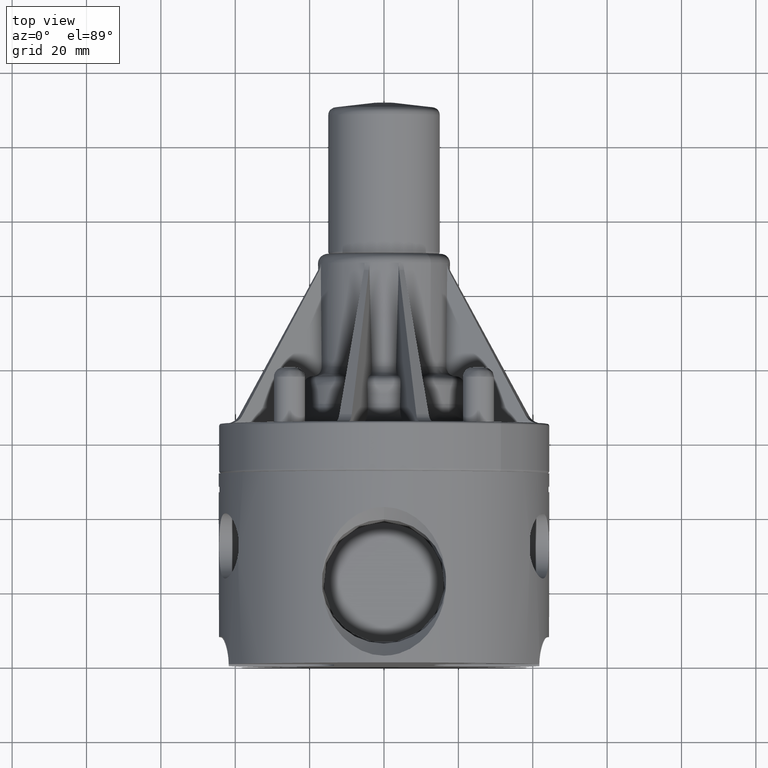
[diagram: clean part render]
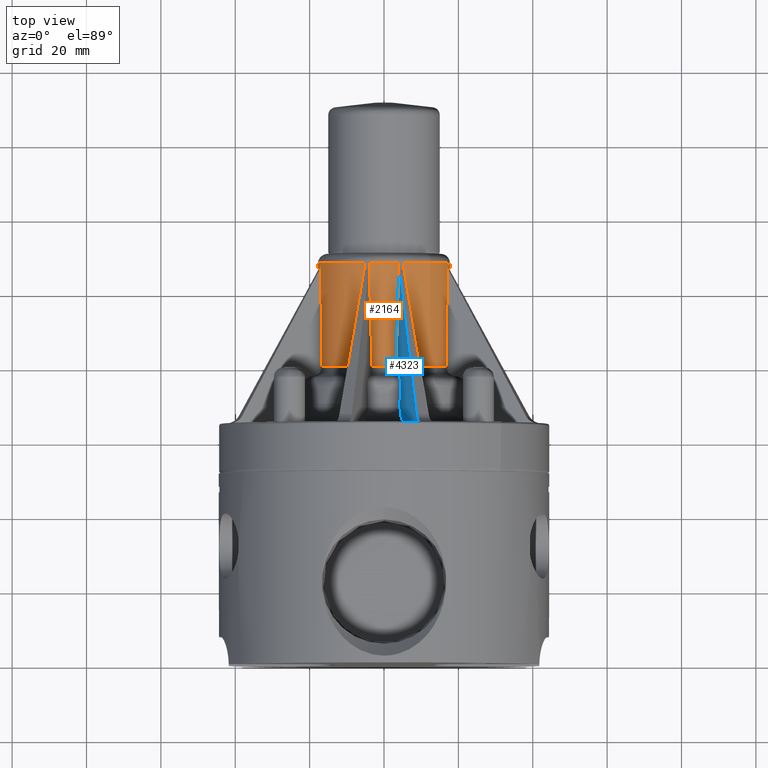
[diagram: same view with the hole feature highlighted: cylindrical wall and planar end face, labeled with their STEP entity ids]
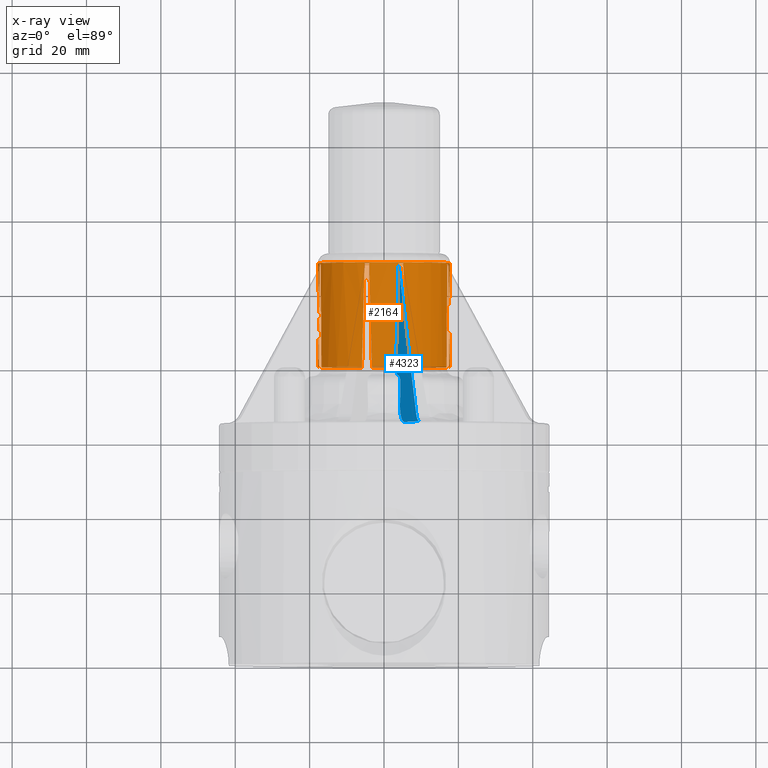
[diagram: x-ray of the same camera — body ghosted, the hole faces saturated]
A machine part, top view. The highlighted faces form one hole feature of diameter 35.56 mm: the cylindrical wall (entity #2164, orange) and its adjacent planar end face (entity #4323, blue) — they share a circular edge in the B-rep.
The next image is the same camera in x-ray (body ghosted, the hole faces saturated) — the bore reads through the body.
Wall:
#1249=CARTESIAN_POINT('',(-0.682343417455201,4.246826314709518,0.156228872669415));
#1250=VERTEX_POINT('',#1249);
#1261=CARTESIAN_POINT('',(-0.669041169956003,4.246826314709518,0.205873536191281));
#1262=VERTEX_POINT('',#1261);
#1272=CARTESIAN_POINT('',(-2.611814E-017,5.779233229634085,-4.755439E-033));
#1273=DIRECTION('',(0.878701736705662,-0.415268310828344,-0.235447420738108));
#1274=DIRECTION('',(-0.401118386268533,-0.909698977696344,0.107479347669929));
#1275=AXIS2_PLACEMENT_3D('',#1272,#1273,#1274);
#1276=ELLIPSE('',#1275,1.685657156462761,0.700000000000000);
#1277=EDGE_CURVE('',#1262,#1250,#1276,.T.);
#1342=CARTESIAN_POINT('',(-0.660060691147378,3.155000000000000,0.233066265259575));
#1343=VERTEX_POINT('',#1342);
#1357=CARTESIAN_POINT('',(-2.362782E-017,5.228192150791810,-4.056511E-033));
#1358=DIRECTION('',(0.258730354279914,0.026176948307873,0.965594827632935));
#1359=DIRECTION('',(0.006775092764742,-0.999657324975557,0.025284990424008));
#1360=AXIS2_PLACEMENT_3D('',#1357,#1358,#1359);
#1361=ELLIPSE('',#1360,26.741085009877565,0.700000000000000);
#1362=EDGE_CURVE('',#1262,#1343,#1361,.T.);
#1386=CARTESIAN_POINT('',(-0.688162459202931,3.155000000000000,0.128189039093733));
#1387=VERTEX_POINT('',#1386);
#1388=CARTESIAN_POINT('',(-2.362782E-017,5.228192150791822,-4.056511E-033));
#1389=DIRECTION('',(0.258730354279913,-0.026176948307873,0.965594827632935));
#1390=DIRECTION('',(0.006775092764742,0.999657324975557,0.025284990424009));
#1391=AXIS2_PLACEMENT_3D('',#1388,#1389,#1390);
#1392=ELLIPSE('',#1391,26.741085009877246,0.700000000000000);
#1393=EDGE_CURVE('',#1387,#1250,#1392,.F.);
#1618=CARTESIAN_POINT('',(-0.688162459202931,3.155000000000000,-0.128189039093734));
#1619=VERTEX_POINT('',#1618);
#1620=CARTESIAN_POINT('',(-1.425842E-017,3.155000000000000,-1.426923E-033));
#1621=DIRECTION('',(2.259655E-018,-1.0,2.259655E-018));
#1622=DIRECTION('',(0.707106781186548,3.195635E-018,0.707106781186547));
#1623=AXIS2_PLACEMENT_3D('',#1620,#1621,#1622);
#1624=CIRCLE('',#1623,0.700000000000000);
#1625=EDGE_CURVE('',#1387,#1619,#1624,.T.);
#1684=CARTESIAN_POINT('',(0.688162459202931,3.155000000000000,-0.128189039093734));
#1685=VERTEX_POINT('',#1684);
#1699=CARTESIAN_POINT('',(0.688162459202931,3.155000000000000,0.128189039093734));
#1700=VERTEX_POINT('',#1699);
#1701=CARTESIAN_POINT('',(-1.425842E-017,3.155000000000000,-1.426923E-033));
#1702=DIRECTION('',(2.259655E-018,-1.0,2.259655E-018));
#1703=DIRECTION('',(0.707106781186548,3.195635E-018,0.707106781186547));
#1704=AXIS2_PLACEMENT_3D('',#1701,#1702,#1703);
#1705=CIRCLE('',#1704,0.700000000000000);
#1706=EDGE_CURVE('',#1685,#1700,#1705,.T.);
#1895=CARTESIAN_POINT('',(0.494974746830583,4.255000000000000,0.494974746830583));
#1896=VERTEX_POINT('',#1895);
#1897=CARTESIAN_POINT('',(-1.922966E-017,4.255000000000000,-2.822137E-033));
#1898=DIRECTION('',(2.259655E-018,-1.000000000000000,2.259655E-018));
#1899=DIRECTION('',(0.707106781186548,3.195635E-018,0.707106781186547));
#1900=AXIS2_PLACEMENT_3D('',#1897,#1898,#1899);
#1901=CIRCLE('',#1900,0.699999999999999);
#1902=EDGE_CURVE('',#1896,#1896,#1901,.T.);
#1910=CARTESIAN_POINT('',(-1.674404E-017,3.705000000000000,-2.124530E-033));
#1911=DIRECTION('',(4.519310E-018,-1.0,1.268376E-033));
#1912=DIRECTION('',(0.707106781186548,3.195635E-018,0.707106781186547));
#1913=AXIS2_PLACEMENT_3D('',#1910,#1911,#1912);
#1914=CYLINDRICAL_SURFACE('',#1913,0.700000000000000);
#1915=ORIENTED_EDGE('',*,*,#1362,.T.);
#1916=CARTESIAN_POINT('',(-0.233066265259573,3.155000000000000,0.660060691147378));
#1917=VERTEX_POINT('',#1916);
#1918=CARTESIAN_POINT('',(-1.425842E-017,3.155000000000000,-1.426923E-033));
#1919=DIRECTION('',(2.259655E-018,-1.0,2.259655E-018));
#1920=DIRECTION('',(0.707106781186548,3.195635E-018,0.707106781186547));
#1921=AXIS2_PLACEMENT_3D('',#1918,#1919,#1920);
#1922=CIRCLE('',#1921,0.700000000000000);
#1923=EDGE_CURVE('',#1917,#1343,#1922,.T.);
#1924=ORIENTED_EDGE('',*,*,#1923,.F.);
#1925=CARTESIAN_POINT('',(-0.205873536191280,4.246826314709517,0.669041169956003));
#1926=VERTEX_POINT('',#1925);
#1927=CARTESIAN_POINT('',(-2.362782E-017,5.228192150791744,-4.056511E-033));
#1928=DIRECTION('',(0.965594827632935,-0.026176948307873,0.258730354279913));
#1929=DIRECTION('',(0.025284990424009,0.999657324975557,0.006775092764742));
#1930=AXIS2_PLACEMENT_3D('',#1927,#1928,#1929);
#1931=ELLIPSE('',#1930,26.741085009877157,0.700000000000000);
#1932=EDGE_CURVE('',#1917,#1926,#1931,.F.);
#1933=ORIENTED_EDGE('',*,*,#1932,.T.);
#1934=CARTESIAN_POINT('',(-0.156228872669416,4.246826314709518,0.682343417455201));
#1935=VERTEX_POINT('',#1934);
#1936=CARTESIAN_POINT('',(-2.611814E-017,5.779233229634085,-4.755439E-033));
#1937=DIRECTION('',(0.235447420738109,-0.415268310828344,-0.878701736705662));
#1938=DIRECTION('',(-0.107479347669929,-0.909698977696344,0.401118386268533));
#1939=AXIS2_PLACEMENT_3D('',#1936,#1937,#1938);
#1940=ELLIPSE('',#1939,1.685657156462761,0.700000000000000);
#1941=EDGE_CURVE('',#1935,#1926,#1940,.T.);
#1942=ORIENTED_EDGE('',*,*,#1941,.F.);
#1943=CARTESIAN_POINT('',(-0.128189039093734,3.155000000000000,0.688162459202931));
#1944=VERTEX_POINT('',#1943);
#1945=CARTESIAN_POINT('',(-2.362782E-017,5.228192150791793,-4.056511E-033));
#1946=DIRECTION('',(0.965594827632935,0.026176948307873,0.258730354279914));
#1947=DIRECTION('',(0.025284990424009,-0.999657324975557,0.006775092764742));
#1948=AXIS2_PLACEMENT_3D('',#1945,#1946,#1947);
#1949=ELLIPSE('',#1948,26.741085009877150,0.700000000000000);
#1950=EDGE_CURVE('',#1935,#1944,#1949,.T.);
#1951=ORIENTED_EDGE('',*,*,#1950,.T.);
#1952=CARTESIAN_POINT('',(0.128189039093735,3.155000000000000,0.688162459202931));
#1953=VERTEX_POINT('',#1952);
#1954=CARTESIAN_POINT('',(-1.425842E-017,3.155000000000000,-1.426923E-033));
#1955=DIRECTION('',(2.259655E-018,-1.0,2.259655E-018));
#1956=DIRECTION('',(0.707106781186548,3.195635E-018,0.707106781186547));
#1957=AXIS2_PLACEMENT_3D('',#1954,#1955,#1956);
#1958=CIRCLE('',#1957,0.700000000000000);
#1959=EDGE_CURVE('',#1953,#1944,#1958,.T.);
#1960=ORIENTED_EDGE('',*,*,#1959,.F.);
#1961=CARTESIAN_POINT('',(0.156228872669417,4.246826314709518,0.682343417455201));
#1962=VERTEX_POINT('',#1961);
#1963=CARTESIAN_POINT('',(-2.362782E-017,5.228192150791786,-4.056511E-033));
#1964=DIRECTION('',(-0.965594827632935,0.026176948307873,0.258730354279914));
#1965=DIRECTION('',(0.025284990424009,0.999657324975557,-0.006775092764742));
#1966=AXIS2_PLACEMENT_3D('',#1963,#1964,#1965);
#1967=ELLIPSE('',#1966,26.741085009877256,0.700000000000000);
#1968=EDGE_CURVE('',#1953,#1962,#1967,.T.);
#1969=ORIENTED_EDGE('',*,*,#1968,.T.);
#1970=CARTESIAN_POINT('',(0.205873536191282,4.246826314709518,0.669041169956003));
#1971=VERTEX_POINT('',#1970);
#1972=CARTESIAN_POINT('',(-2.611814E-017,5.779233229634085,-4.755439E-033));
#1973=DIRECTION('',(-0.235447420738109,-0.415268310828344,-0.878701736705662));
#1974=DIRECTION('',(0.107479347669929,-0.909698977696344,0.401118386268533));
#1975=AXIS2_PLACEMENT_3D('',#1972,#1973,#1974);
#1976=ELLIPSE('',#1975,1.685657156462761,0.700000000000000);
#1977=EDGE_CURVE('',#1971,#1962,#1976,.T.);
#1978=ORIENTED_EDGE('',*,*,#1977,.F.);
#1979=CARTESIAN_POINT('',(0.233066265259575,3.155000000000000,0.660060691147378));
#1980=VERTEX_POINT('',#1979);
#1981=CARTESIAN_POINT('',(-2.362782E-017,5.228192150791786,-4.056511E-033));
#1982=DIRECTION('',(-0.965594827632935,-0.026176948307873,0.258730354279914));
#1983=DIRECTION('',(0.025284990424009,-0.999657324975557,-0.006775092764742));
#1984=AXIS2_PLACEMENT_3D('',#1981,#1982,#1983);
#1985=ELLIPSE('',#1984,26.741085009877313,0.700000000000000);
#1986=EDGE_CURVE('',#1971,#1980,#1985,.F.);
#1987=ORIENTED_EDGE('',*,*,#1986,.T.);
#1988=CARTESIAN_POINT('',(0.660060691147378,3.155000000000000,0.233066265259575));
#1989=VERTEX_POINT('',#1988);
#1990=CARTESIAN_POINT('',(-1.425842E-017,3.155000000000000,-1.426923E-033));
#1991=DIRECTION('',(2.259655E-018,-1.0,2.259655E-018));
#1992=DIRECTION('',(0.707106781186548,3.195635E-018,0.707106781186547));
#1993=AXIS2_PLACEMENT_3D('',#1990,#1991,#1992);
#1994=CIRCLE('',#1993,0.700000000000000);
#1995=EDGE_CURVE('',#1989,#1980,#1994,.T.);
#1996=ORIENTED_EDGE('',*,*,#1995,.F.);
#1997=CARTESIAN_POINT('',(0.669041169956003,4.246826314709517,0.205873536191281));
#1998=VERTEX_POINT('',#1997);
#1999=CARTESIAN_POINT('',(-2.362782E-017,5.228192150791786,-4.056511E-033));
#2000=DIRECTION('',(-0.258730354279914,0.026176948307873,0.965594827632935));
#2001=DIRECTION('',(-0.006775092764742,-0.999657324975557,0.025284990424009));
#2002=AXIS2_PLACEMENT_3D('',#1999,#2000,#2001);
#2003=ELLIPSE('',#2002,26.741085009877324,0.700000000000000);
#2004=EDGE_CURVE('',#1989,#1998,#2003,.T.);
#2005=ORIENTED_EDGE('',*,*,#2004,.T.);
#2006=CARTESIAN_POINT('',(0.682343417455201,4.246826314709518,0.156228872669417));
#2007=VERTEX_POINT('',#2006);
#2008=CARTESIAN_POINT('',(-2.611814E-017,5.779233229634085,-4.755439E-033));
#2009=DIRECTION('',(-0.878701736705662,-0.415268310828344,-0.235447420738109));
#2010=DIRECTION('',(0.401118386268533,-0.909698977696345,0.107479347669929));
#2011=AXIS2_PLACEMENT_3D('',#2008,#2009,#2010);
#2012=ELLIPSE('',#2011,1.685657156462762,0.700000000000000);
#2013=EDGE_CURVE('',#2007,#1998,#2012,.T.);
#2014=ORIENTED_EDGE('',*,*,#2013,.F.);
#2015=CARTESIAN_POINT('',(-2.362782E-017,5.228192150791787,-4.056511E-033));
#2016=DIRECTION('',(-0.258730354279914,-0.026176948307873,0.965594827632935));
#2017=DIRECTION('',(-0.006775092764742,0.999657324975557,0.025284990424009));
#2018=AXIS2_PLACEMENT_3D('',#2015,#2016,#2017);
#2019=ELLIPSE('',#2018,26.741085009877157,0.700000000000000);
#2020=EDGE_CURVE('',#2007,#1700,#2019,.F.);
#2021=ORIENTED_EDGE('',*,*,#2020,.T.);
#2022=ORIENTED_EDGE('',*,*,#1706,.F.);
#2023=CARTESIAN_POINT('',(0.682343417455201,4.246826314709517,-0.156228872669416));
#2024=VERTEX_POINT('',#2023);
#2025=CARTESIAN_POINT('',(-2.362782E-017,5.228192150791796,-4.056511E-033));
#2026=DIRECTION('',(0.258730354279914,0.026176948307873,0.965594827632935));
#2027=DIRECTION('',(0.006775092764742,-0.999657324975557,0.025284990424009));
#2028=AXIS2_PLACEMENT_3D('',#2025,#2026,#2027);
#2029=ELLIPSE('',#2028,26.741085009877132,0.700000000000000);
#2030=EDGE_CURVE('',#1685,#2024,#2029,.T.);
#2031=ORIENTED_EDGE('',*,*,#2030,.T.);
#2032=CARTESIAN_POINT('',(0.669041169956003,4.246826314709517,-0.205873536191282));
#2033=VERTEX_POINT('',#2032);
#2034=CARTESIAN_POINT('',(-2.611814E-017,5.779233229634085,-4.755439E-033));
#2035=DIRECTION('',(-0.878701736705662,-0.415268310828344,0.235447420738109));
#2036=DIRECTION('',(0.401118386268533,-0.909698977696345,-0.107479347669929));
#2037=AXIS2_PLACEMENT_3D('',#2034,#2035,#2036);
#2038=ELLIPSE('',#2037,1.685657156462762,0.700000000000000);
#2039=EDGE_CURVE('',#2033,#2024,#2038,.T.);
#2040=ORIENTED_EDGE('',*,*,#2039,.F.);
#2041=CARTESIAN_POINT('',(0.660060691147378,3.155000000000000,-0.233066265259575));
#2042=VERTEX_POINT('',#2041);
#2043=CARTESIAN_POINT('',(-2.362782E-017,5.228192150791800,-4.056511E-033));
#2044=DIRECTION('',(0.258730354279914,-0.026176948307873,0.965594827632935));
#2045=DIRECTION('',(0.006775092764742,0.999657324975557,0.025284990424008));
#2046=AXIS2_PLACEMENT_3D('',#2043,#2044,#2045);
#2047=ELLIPSE('',#2046,26.741085009877501,0.700000000000000);
#2048=EDGE_CURVE('',#2033,#2042,#2047,.F.);
#2049=ORIENTED_EDGE('',*,*,#2048,.T.);
#2050=CARTESIAN_POINT('',(0.233066265259573,3.155000000000000,-0.660060691147378));
#2051=VERTEX_POINT('',#2050);
#2052=CARTESIAN_POINT('',(-1.425842E-017,3.155000000000000,-1.426923E-033));
#2053=DIRECTION('',(2.259655E-018,-1.0,2.259655E-018));
#2054=DIRECTION('',(0.707106781186548,3.195635E-018,0.707106781186547));
#2055=AXIS2_PLACEMENT_3D('',#2052,#2053,#2054);
#2056=CIRCLE('',#2055,0.700000000000000);
#2057=EDGE_CURVE('',#2051,#2042,#2056,.T.);
#2058=ORIENTED_EDGE('',*,*,#2057,.F.);
#2059=CARTESIAN_POINT('',(0.205873536191280,4.246826314709517,-0.669041169956003));
#2060=VERTEX_POINT('',#2059);
#2061=CARTESIAN_POINT('',(-2.362782E-017,5.228192150791765,-4.056511E-033));
#2062=DIRECTION('',(0.965594827632935,0.026176948307873,0.258730354279913));
#2063=DIRECTION('',(0.025284990424009,-0.999657324975557,0.006775092764742));
#2064=AXIS2_PLACEMENT_3D('',#2061,#2062,#2063);
#2065=ELLIPSE('',#2064,26.741085009877356,0.700000000000000);
#2066=EDGE_CURVE('',#2051,#2060,#2065,.T.);
#2067=ORIENTED_EDGE('',*,*,#2066,.T.);
#2068=CARTESIAN_POINT('',(0.156228872669417,4.246826314709518,-0.682343417455201));
#2069=VERTEX_POINT('',#2068);
#2070=CARTESIAN_POINT('',(-2.611814E-017,5.779233229634085,-4.755439E-033));
#2071=DIRECTION('',(-0.235447420738109,-0.415268310828344,0.878701736705662));
#2072=DIRECTION('',(0.107479347669929,-0.909698977696344,-0.401118386268533));
#2073=AXIS2_PLACEMENT_3D('',#2070,#2071,#2072);
#2074=ELLIPSE('',#2073,1.685657156462761,0.700000000000000);
#2075=EDGE_CURVE('',#2069,#2060,#2074,.T.);
#2076=ORIENTED_EDGE('',*,*,#2075,.F.);
#2077=CARTESIAN_POINT('',(0.128189039093734,3.155000000000000,-0.688162459202931));
#2078=VERTEX_POINT('',#2077);
#2079=CARTESIAN_POINT('',(-2.362782E-017,5.228192150791780,-4.056511E-033));
#2080=DIRECTION('',(0.965594827632935,-0.026176948307873,0.258730354279914));
#2081=DIRECTION('',(0.025284990424009,0.999657324975557,0.006775092764742));
#2082=AXIS2_PLACEMENT_3D('',#2079,#2080,#2081);
#2083=ELLIPSE('',#2082,26.741085009877033,0.700000000000000);
#2084=EDGE_CURVE('',#2069,#2078,#2083,.F.);
#2085=ORIENTED_EDGE('',*,*,#2084,.T.);
#2086=CARTESIAN_POINT('',(-0.128189039093735,3.155000000000000,-0.688162459202931));
#2087=VERTEX_POINT('',#2086);
#2088=CARTESIAN_POINT('',(-1.425842E-017,3.155000000000000,-1.426923E-033));
#2089=DIRECTION('',(2.259655E-018,-1.0,2.259655E-018));
#2090=DIRECTION('',(0.707106781186548,3.195635E-018,0.707106781186547));
#2091=AXIS2_PLACEMENT_3D('',#2088,#2089,#2090);
#2092=CIRCLE('',#2091,0.700000000000000);
#2093=EDGE_CURVE('',#2087,#2078,#2092,.T.);
#2094=ORIENTED_EDGE('',*,*,#2093,.F.);
#2095=CARTESIAN_POINT('',(-0.156228872669417,4.246826314709518,-0.682343417455201));
#2096=VERTEX_POINT('',#2095);
#2097=CARTESIAN_POINT('',(-2.362782E-017,5.228192150791787,-4.056511E-033));
#2098=DIRECTION('',(-0.965594827632935,-0.026176948307873,0.258730354279915));
#2099=DIRECTION('',(0.025284990424009,-0.999657324975557,-0.006775092764742));
#2100=AXIS2_PLACEMENT_3D('',#2097,#2098,#2099);
#2101=ELLIPSE('',#2100,26.741085009877217,0.700000000000000);
#2102=EDGE_CURVE('',#2087,#2096,#2101,.F.);
#2103=ORIENTED_EDGE('',*,*,#2102,.T.);
#2104=CARTESIAN_POINT('',(-0.205873536191281,4.246826314709517,-0.669041169956003));
#2105=VERTEX_POINT('',#2104);
#2106=CARTESIAN_POINT('',(-2.611814E-017,5.779233229634085,-4.755439E-033));
#2107=DIRECTION('',(0.235447420738109,-0.415268310828344,0.878701736705662));
#2108=DIRECTION('',(-0.107479347669929,-0.909698977696344,-0.401118386268533));
#2109=AXIS2_PLACEMENT_3D('',#2106,#2107,#2108);
#2110=ELLIPSE('',#2109,1.685657156462761,0.700000000000000);
#2111=EDGE_CURVE('',#2105,#2096,#2110,.T.);
#2112=ORIENTED_EDGE('',*,*,#2111,.F.);
#2113=CARTESIAN_POINT('',(-0.233066265259575,3.155000000000000,-0.660060691147378));
#2114=VERTEX_POINT('',#2113);
#2115=CARTESIAN_POINT('',(-2.362782E-017,5.228192150791769,-4.056511E-033));
#2116=DIRECTION('',(-0.965594827632935,0.026176948307873,0.258730354279914));
#2117=DIRECTION('',(0.025284990424009,0.999657324975557,-0.006775092764742));
#2118=AXIS2_PLACEMENT_3D('',#2115,#2116,#2117);
#2119=ELLIPSE('',#2118,26.741085009877199,0.700000000000000);
#2120=EDGE_CURVE('',#2105,#2114,#2119,.T.);
#2121=ORIENTED_EDGE('',*,*,#2120,.T.);
#2122=CARTESIAN_POINT('',(-0.660060691147378,3.155000000000000,-0.233066265259575));
#2123=VERTEX_POINT('',#2122);
#2124=CARTESIAN_POINT('',(-1.425842E-017,3.155000000000000,-1.426923E-033));
#2125=DIRECTION('',(2.259655E-018,-1.0,2.259655E-018));
#2126=DIRECTION('',(0.707106781186548,3.195635E-018,0.707106781186547));
#2127=AXIS2_PLACEMENT_3D('',#2124,#2125,#2126);
#2128=CIRCLE('',#2127,0.700000000000000);
#2129=EDGE_CURVE('',#2123,#2114,#2128,.T.);
#2130=ORIENTED_EDGE('',*,*,#2129,.F.);
#2131=CARTESIAN_POINT('',(-0.669041169956003,4.246826314709518,-0.205873536191282));
#2132=VERTEX_POINT('',#2131);
#2133=CARTESIAN_POINT('',(-2.362782E-017,5.228192150791800,-4.056511E-033));
#2134=DIRECTION('',(-0.258730354279914,-0.026176948307873,0.965594827632935));
#2135=DIRECTION('',(-0.006775092764742,0.999657324975557,0.025284990424009));
#2136=AXIS2_PLACEMENT_3D('',#2133,#2134,#2135);
#2137=ELLIPSE('',#2136,26.741085009877391,0.700000000000000);
#2138=EDGE_CURVE('',#2123,#2132,#2137,.F.);
#2139=ORIENTED_EDGE('',*,*,#2138,.T.);
#2140=CARTESIAN_POINT('',(-0.682343417455201,4.246826314709518,-0.156228872669416));
#2141=VERTEX_POINT('',#2140);
#2142=CARTESIAN_POINT('',(-2.611814E-017,5.779233229634085,-4.755439E-033));
#2143=DIRECTION('',(0.878701736705662,-0.415268310828344,0.235447420738109));
#2144=DIRECTION('',(-0.401118386268533,-0.909698977696344,-0.107479347669929));
#2145=AXIS2_PLACEMENT_3D('',#2142,#2143,#2144);
#2146=ELLIPSE('',#2145,1.685657156462761,0.700000000000000);
#2147=EDGE_CURVE('',#2141,#2132,#2146,.T.);
#2148=ORIENTED_EDGE('',*,*,#2147,.F.);
#2149=CARTESIAN_POINT('',(-2.362782E-017,5.228192150791821,-4.056511E-033));
#2150=DIRECTION('',(-0.258730354279914,0.026176948307873,0.965594827632935));
#2151=DIRECTION('',(-0.006775092764742,-0.999657324975557,0.025284990424009));
#2152=AXIS2_PLACEMENT_3D('',#2149,#2150,#2151);
#2153=ELLIPSE('',#2152,26.741085009877402,0.700000000000000);
#2154=EDGE_CURVE('',#2141,#1619,#2153,.T.);
#2155=ORIENTED_EDGE('',*,*,#2154,.T.);
#2156=ORIENTED_EDGE('',*,*,#1625,.F.);
#2157=ORIENTED_EDGE('',*,*,#1393,.T.);
#2158=ORIENTED_EDGE('',*,*,#1277,.F.);
#2159=EDGE_LOOP('',(#1915,#1924,#1933,#1942,#1951,#1960,#1969,#1978,#1987,#1996,#2005,#2014,#2021,#2022,#2031,#2040,#2049,#2058,#2067,#2076,#2085,#2094,#2103,#2112,#2121,#2130,#2139,#2148,#2155,#2156,#2157,#2158));
#2160=FACE_OUTER_BOUND('',#2159,.T.);
#2161=ORIENTED_EDGE('',*,*,#1902,.T.);
#2162=EDGE_LOOP('',(#2161));
#2163=FACE_BOUND('',#2162,.T.);
#2164=ADVANCED_FACE('',(#2160,#2163),#1914,.T.);
End face:
#1952=CARTESIAN_POINT('',(0.128189039093735,3.155000000000000,0.688162459202931));
#1953=VERTEX_POINT('',#1952);
#1961=CARTESIAN_POINT('',(0.156228872669417,4.246826314709518,0.682343417455201));
#1962=VERTEX_POINT('',#1961);
#1963=CARTESIAN_POINT('',(-2.362782E-017,5.228192150791786,-4.056511E-033));
#1964=DIRECTION('',(-0.965594827632935,0.026176948307873,0.258730354279914));
#1965=DIRECTION('',(0.025284990424009,0.999657324975557,-0.006775092764742));
#1966=AXIS2_PLACEMENT_3D('',#1963,#1964,#1965);
#1967=ELLIPSE('',#1966,26.741085009877256,0.700000000000000);
#1968=EDGE_CURVE('',#1953,#1962,#1967,.T.);
#2358=CARTESIAN_POINT('',(0.373432335502502,2.555000000000001,1.664127680645381));
#2359=VERTEX_POINT('',#2358);
#2366=CARTESIAN_POINT('',(0.216509096380594,2.555000000000000,1.078482179354141));
#2367=VERTEX_POINT('',#2366);
#2368=CARTESIAN_POINT('',(0.373432335502502,2.555000000000001,1.664127680645381));
#2369=DIRECTION('',(-0.258819045102521,0.0,-0.965925826289068));
#2370=VECTOR('',#2369,0.606304837651143);
#2371=LINE('',#2368,#2370);
#2372=EDGE_CURVE('',#2359,#2367,#2371,.T.);
#3132=CARTESIAN_POINT('',(0.169777201276021,2.754999999999999,0.883841446146807));
#3133=VERTEX_POINT('',#3132);
#3165=CARTESIAN_POINT('',(0.216509096380594,2.555000000000000,1.078482179354141));
#3166=CARTESIAN_POINT('',(0.213308023399297,2.555000000000000,1.066535612349206));
#3167=CARTESIAN_POINT('',(0.209842755589141,2.556217885510780,1.053479837701843));
#3168=CARTESIAN_POINT('',(0.203128527081715,2.561471903867086,1.027890422406276));
#3169=CARTESIAN_POINT('',(0.199879575872808,2.565508160370529,1.015356804658082));
#3170=CARTESIAN_POINT('',(0.194207840437122,2.574957053876605,0.993233611524414));
#3171=CARTESIAN_POINT('',(0.191262000533208,2.581236633620061,0.981604253164174));
#3172=CARTESIAN_POINT('',(0.185843632805237,2.596183871431072,0.959870348228601));
#3173=CARTESIAN_POINT('',(0.183371138585311,2.604851699085820,0.949765909907674));
#3174=CARTESIAN_POINT('',(0.179292656766511,2.622303274375320,0.932779151839400));
#3175=CARTESIAN_POINT('',(0.177310895541279,2.632693896922299,0.924331850848877));
#3176=CARTESIAN_POINT('',(0.174007429995611,2.655073180475888,0.909738933819802));
#3177=CARTESIAN_POINT('',(0.172685756156060,2.667061915289674,0.903593424070046));
#3178=CARTESIAN_POINT('',(0.170822404703517,2.689869939347136,0.894331708342628));
#3179=CARTESIAN_POINT('',(0.170109033763848,2.702789140109283,0.890362276371969));
#3180=CARTESIAN_POINT('',(0.169427388711545,2.729185125918652,0.885147738261019));
#3181=CARTESIAN_POINT('',(0.169459092598124,2.742661894506163,0.883902551677975));
#3182=CARTESIAN_POINT('',(0.169777201276021,2.755000000000000,0.883841446146808));
#3183=B_SPLINE_CURVE_WITH_KNOTS('',3,(#3165,#3166,#3167,#3168,#3169,#3170,#3171,#3172,#3173,#3174,#3175,#3176,#3177,#3178,#3179,#3180,#3181,#3182),.UNSPECIFIED.,.F.,.U.,(4,2,2,2,2,2,2,2,4),(0.753448376052435,0.847692507537499,0.941936639022563,1.036029227545029,1.130121816067495,1.224189454701717,1.318257093335939,1.412305853021050,1.506354612706161),.UNSPECIFIED.);
#3184=EDGE_CURVE('',#2367,#3133,#3183,.T.);
#3194=CARTESIAN_POINT('',(0.174929752118621,2.955000000000000,0.882836101336888));
#3195=VERTEX_POINT('',#3194);
#3213=CARTESIAN_POINT('',(-2.362782E-017,5.228192150791784,-4.056511E-033));
#3214=DIRECTION('',(-0.965594827632935,0.026176948307873,0.258730354279914));
#3215=DIRECTION('',(0.025284990424009,0.999657324975557,-0.006775092764742));
#3216=AXIS2_PLACEMENT_3D('',#3213,#3214,#3215);
#3217=ELLIPSE('',#3216,34.381395012699301,0.899999999999999);
#3218=EDGE_CURVE('',#3133,#3195,#3217,.T.);
#3228=CARTESIAN_POINT('',(0.151562741305011,3.055000000000000,0.785511766587941));
#3229=VERTEX_POINT('',#3228);
#3253=CARTESIAN_POINT('',(0.174929752118621,2.955000000000000,0.882836101336888));
#3254=CARTESIAN_POINT('',(0.175247228531984,2.967332582950760,0.882773194903622));
#3255=CARTESIAN_POINT('',(0.174872443599163,2.981851543244706,0.879905528031789));
#3256=CARTESIAN_POINT('',(0.173011245511319,3.004649469832383,0.870652870378623));
#3257=CARTESIAN_POINT('',(0.171195625983358,3.016959886403182,0.862631384190243));
#3258=CARTESIAN_POINT('',(0.167120178990423,3.034417600930554,0.845655331111156));
#3259=CARTESIAN_POINT('',(0.164138363577275,3.042648294680131,0.833694307081619));
#3260=CARTESIAN_POINT('',(0.158464101778169,3.052107735331143,0.811560618327808));
#3261=CARTESIAN_POINT('',(0.154766446293859,3.054999999999999,0.797468156378784));
#3262=CARTESIAN_POINT('',(0.151562741305011,3.054999999999999,0.785511766587941));
#3263=B_SPLINE_CURVE_WITH_KNOTS('',3,(#3253,#3254,#3255,#3256,#3257,#3258,#3259,#3260,#3261,#3262),.UNSPECIFIED.,.F.,.U.,(4,2,2,2,4),(0.0,0.094006637274788,0.188018182703628,0.282140015038897,0.376461636561581),.UNSPECIFIED.);
#3264=EDGE_CURVE('',#3195,#3229,#3263,.T.);
#3313=CARTESIAN_POINT('',(0.151562741305011,3.055000000000000,0.785511766587943));
#3314=CARTESIAN_POINT('',(0.148357994777024,3.055000000000000,0.773551489720113));
#3315=CARTESIAN_POINT('',(0.144659171827576,3.057893656764100,0.759454529887154));
#3316=CARTESIAN_POINT('',(0.138982416939470,3.067354889651928,0.737311355469627));
#3317=CARTESIAN_POINT('',(0.135998801629016,3.075587286834391,0.725343441787702));
#3318=CARTESIAN_POINT('',(0.131921605899580,3.093047231230306,0.708360636729014));
#3319=CARTESIAN_POINT('',(0.130105411461569,3.105357319234435,0.700337038189732));
#3320=CARTESIAN_POINT('',(0.128244639408892,3.128153870403676,0.691086109678909));
#3321=CARTESIAN_POINT('',(0.127870671909977,3.142670159398393,0.688221763779661));
#3322=CARTESIAN_POINT('',(0.128189039093735,3.155000000000000,0.688162459202931));
#3323=B_SPLINE_CURVE_WITH_KNOTS('',3,(#3313,#3314,#3315,#3316,#3317,#3318,#3319,#3320,#3321,#3322),.UNSPECIFIED.,.F.,.U.,(4,2,2,2,4),(0.376854774728702,0.471207060641792,0.565372503968186,0.659390030644902,0.753375817397422),.UNSPECIFIED.);
#3324=EDGE_CURVE('',#3229,#1953,#3323,.T.);
#4139=CARTESIAN_POINT('',(0.341431757273112,2.632278556963049,1.536881267281476));
#4140=VERTEX_POINT('',#4139);
#4147=CARTESIAN_POINT('',(0.377226384191831,2.705000000000000,1.663111068363031));
#4148=DIRECTION('',(0.965594827632935,-0.026176948307873,-0.258730354279914));
#4149=DIRECTION('',(-0.025284990424004,-0.999657324975557,0.006775092764758));
#4150=AXIS2_PLACEMENT_3D('',#4147,#4148,#4149);
#4151=ELLIPSE('',#4150,0.150051418873630,0.150000000000000);
#4152=EDGE_CURVE('',#4140,#2359,#4151,.F.);
#4172=CARTESIAN_POINT('',(0.159257474361929,4.173880267457618,0.701026602313353));
#4173=VERTEX_POINT('',#4172);
#4181=CARTESIAN_POINT('',(0.341431757273111,2.632278556963049,1.536881267281476));
#4182=DIRECTION('',(-0.103328535128913,0.874390413136919,-0.474093470997399));
#4183=VECTOR('',#4182,1.763058797687405);
#4184=LINE('',#4181,#4183);
#4185=EDGE_CURVE('',#4173,#4140,#4184,.F.);
#4211=CARTESIAN_POINT('',(0.159257474361929,4.173880267457618,0.701026602313353));
#4212=CARTESIAN_POINT('',(0.157944192989052,4.184993563903390,0.695000985830096));
#4213=CARTESIAN_POINT('',(0.157020953510495,4.196843569171222,0.690356489269742));
#4214=CARTESIAN_POINT('',(0.155998719486963,4.221453470614589,0.684051562241607));
#4215=CARTESIAN_POINT('',(0.155904197600086,4.234115211044678,0.682417754832492));
#4216=CARTESIAN_POINT('',(0.156228872669417,4.246826314709518,0.682343417455201));
#4217=B_SPLINE_CURVE_WITH_KNOTS('',3,(#4211,#4212,#4213,#4214,#4215,#4216),.UNSPECIFIED.,.F.,.U.,(4,2,4),(-0.193739459944152,-0.096891857130675,0.0),.UNSPECIFIED.);
#4218=EDGE_CURVE('',#1962,#4173,#4217,.F.);
#4307=CARTESIAN_POINT('',(-0.379808908483760,3.033713207108848,-1.195440544694282));
#4308=DIRECTION('',(-0.965594827632935,0.026176948307873,0.258730354279914));
#4309=DIRECTION('',(0.258819045102521,1.615162E-019,0.965925826289068));
#4310=AXIS2_PLACEMENT_3D('',#4307,#4308,#4309);
#4311=PLANE('',#4310);
#4312=ORIENTED_EDGE('',*,*,#2372,.F.);
#4313=ORIENTED_EDGE('',*,*,#4152,.F.);
#4314=ORIENTED_EDGE('',*,*,#4185,.F.);
#4315=ORIENTED_EDGE('',*,*,#4218,.F.);
#4316=ORIENTED_EDGE('',*,*,#1968,.F.);
#4317=ORIENTED_EDGE('',*,*,#3324,.F.);
#4318=ORIENTED_EDGE('',*,*,#3264,.F.);
#4319=ORIENTED_EDGE('',*,*,#3218,.F.);
#4320=ORIENTED_EDGE('',*,*,#3184,.F.);
#4321=EDGE_LOOP('',(#4312,#4313,#4314,#4315,#4316,#4317,#4318,#4319,#4320));
#4322=FACE_OUTER_BOUND('',#4321,.T.);
#4323=ADVANCED_FACE('',(#4322),#4311,.T.);